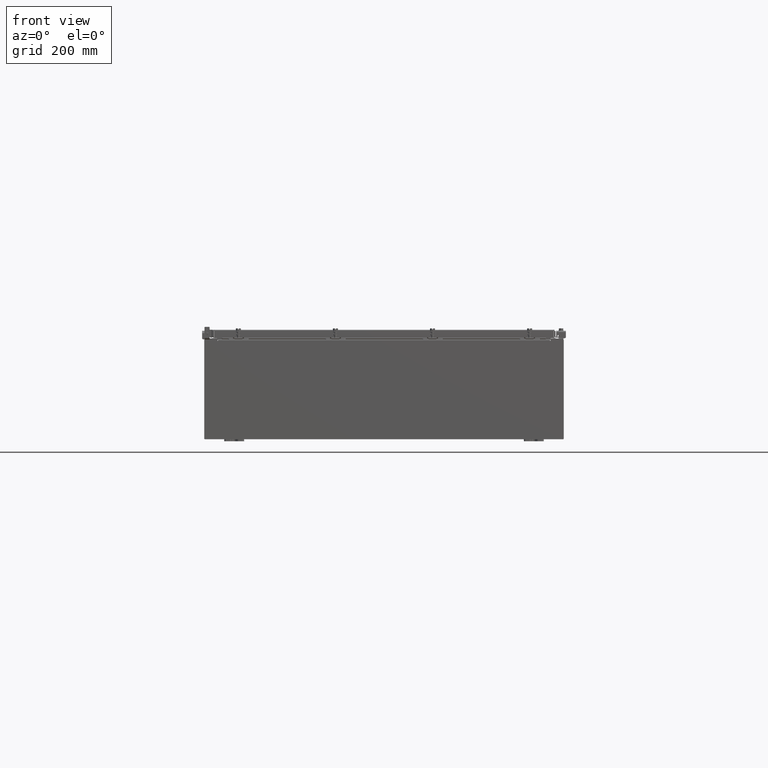
[diagram: clean part render]
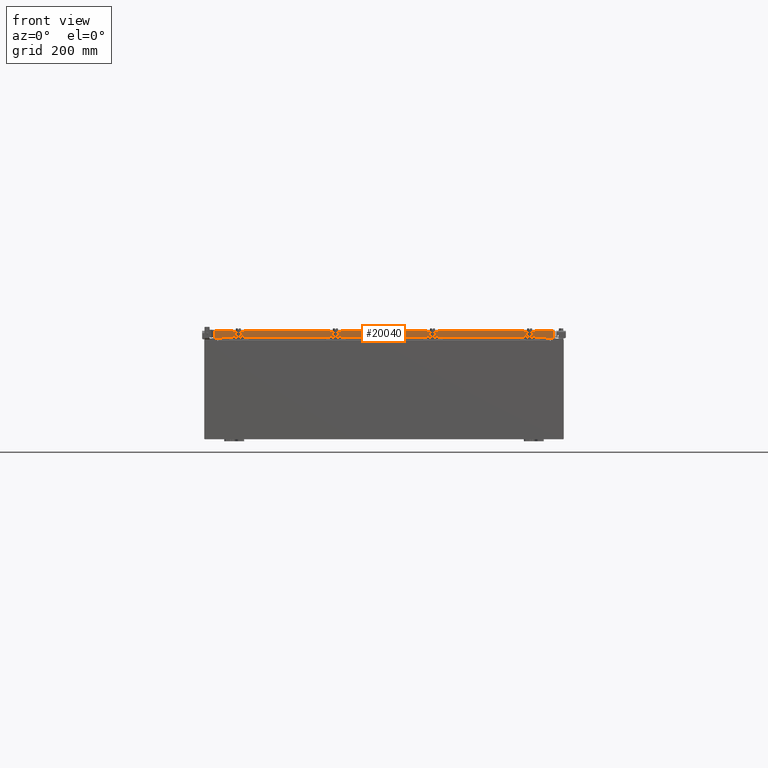
[diagram: same view with one face highlighted and labeled with its STEP entity id]
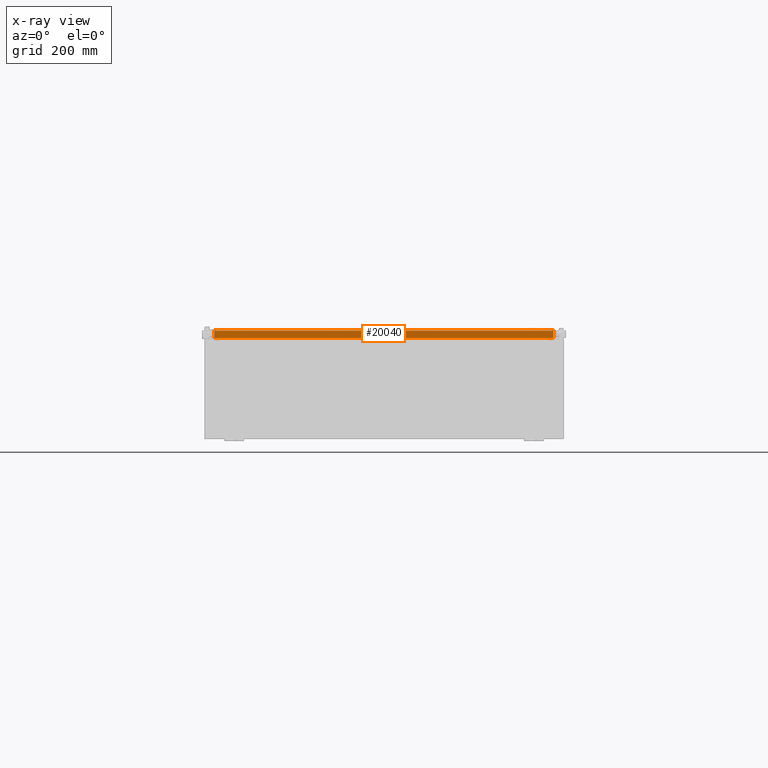
[diagram: x-ray of the same camera — body ghosted, the highlighted face saturated]
A machine part, front view. The second image highlights one B-rep face of the part: STEP entity #20040.
The next image is the same camera in x-ray: the body ghosted, the highlighted face saturated — about 0% of this face is hidden behind the body in this view.
In plain terms, the highlighted planar face has unit normal (-0, 1, -0).
Its self-contained STEP definition (entity closure, byte-faithful):
#139 = VECTOR ( 'NONE', #17964, 39.37007874015748100 ) ;
#969 = VECTOR ( 'NONE', #20179, 39.37007874015748100 ) ;
#1788 = FACE_OUTER_BOUND ( 'NONE', #9519, .T. ) ;
#2096 = VERTEX_POINT ( 'NONE', #23446 ) ;
#2571 = DIRECTION ( 'NONE',  ( -1.000000000000000000, -0.0000000000000000000, 1.239713195391617100E-016 ) ) ;
#3148 = CARTESIAN_POINT ( 'NONE',  ( 16.23915786437627100, -29.09400000000000800, -0.8499999999999972000 ) ) ;
#3581 = ORIENTED_EDGE ( 'NONE', *, *, #15982, .T. ) ;
#3699 = VECTOR ( 'NONE', #2571, 39.37007874015748100 ) ;
#5522 = EDGE_CURVE ( 'NONE', #26220, #18450, #7653, .T. ) ;
#7653 = LINE ( 'NONE', #8354, #18972 ) ;
#7889 = CARTESIAN_POINT ( 'NONE',  ( 2.033440117909724100E-029, -29.09400000000000500, 1.642858579540497200E-013 ) ) ;
#8354 = CARTESIAN_POINT ( 'NONE',  ( 17.07800000000000700, -29.09400000000000800, -0.8499999999999996400 ) ) ;
#8428 = CARTESIAN_POINT ( 'NONE',  ( -16.98915786437626400, -29.09400000000000500, 1.642858579540497200E-013 ) ) ;
#9483 = CARTESIAN_POINT ( 'NONE',  ( 17.07800000000000300, -29.09400000000000500, -0.08769999999999547600 ) ) ;
#9519 = EDGE_LOOP ( 'NONE', ( #24802, #3581, #19786, #26585, #11369, #22825 ) ) ;
#10574 = DIRECTION ( 'NONE',  ( 0.0000000000000000000, -5.637761885544721800E-015, -1.000000000000000000 ) ) ;
#10736 = CARTESIAN_POINT ( 'NONE',  ( 16.98915786437627100, -29.09400000000000500, -0.07469999999999958600 ) ) ;
#11369 = ORIENTED_EDGE ( 'NONE', *, *, #5522, .F. ) ;
#12183 = DIRECTION ( 'NONE',  ( -6.989207801985715000E-031, 1.000000000000000000, -5.637761885544721100E-015 ) ) ;
#12883 = DIRECTION ( 'NONE',  ( -0.0000000000000000000, -5.637761885544721800E-015, -1.000000000000000000 ) ) ;
#13547 = AXIS2_PLACEMENT_3D ( 'NONE', #7889, #12183, #27091 ) ;
#13550 = VERTEX_POINT ( 'NONE', #13619 ) ;
#13619 = CARTESIAN_POINT ( 'NONE',  ( 16.98915786437627100, -29.09400000000000500, -0.08769999999999549000 ) ) ;
#14738 = EDGE_CURVE ( 'NONE', #2096, #16153, #19339, .T. ) ;
#15297 = VECTOR ( 'NONE', #10574, 39.37007874015748100 ) ;
#15321 = CARTESIAN_POINT ( 'NONE',  ( 17.07800000000000700, -29.09400000000000800, -0.8499999999999996400 ) ) ;
#15970 = LINE ( 'NONE', #8428, #15297 ) ;
#15982 = EDGE_CURVE ( 'NONE', #17040, #16153, #15970, .T. ) ;
#16153 = VERTEX_POINT ( 'NONE', #25845 ) ;
#16379 = EDGE_CURVE ( 'NONE', #18450, #2096, #17945, .T. ) ;
#16384 = CARTESIAN_POINT ( 'NONE',  ( 16.98915786437627100, -29.09400000000000800, -0.8499999999999996400 ) ) ;
#16816 = EDGE_CURVE ( 'NONE', #13550, #26220, #21228, .T. ) ;
#17040 = VERTEX_POINT ( 'NONE', #26190 ) ;
#17945 = LINE ( 'NONE', #3148, #969 ) ;
#17964 = DIRECTION ( 'NONE',  ( 1.000000000000000000, 6.989207801985715000E-031, -3.922586267643549100E-045 ) ) ;
#18450 = VERTEX_POINT ( 'NONE', #27270 ) ;
#18972 = VECTOR ( 'NONE', #21113, 39.37007874015748100 ) ;
#19339 = LINE ( 'NONE', #15321, #3699 ) ;
#19786 = ORIENTED_EDGE ( 'NONE', *, *, #14738, .F. ) ;
#20040 = ADVANCED_FACE ( 'NONE', ( #1788 ), #24927, .F. ) ;
#20179 = DIRECTION ( 'NONE',  ( -1.000000000000000000, 0.0000000000000000000, 0.0000000000000000000 ) ) ;
#20569 = VECTOR ( 'NONE', #12883, 39.37007874015748100 ) ;
#21113 = DIRECTION ( 'NONE',  ( -1.000000000000000000, -0.0000000000000000000, 1.239713195391617100E-016 ) ) ;
#21228 = LINE ( 'NONE', #10736, #20569 ) ;
#22763 = LINE ( 'NONE', #9483, #139 ) ;
#22825 = ORIENTED_EDGE ( 'NONE', *, *, #16816, .F. ) ;
#23446 = CARTESIAN_POINT ( 'NONE',  ( -16.23915786437626700, -29.09400000000000800, -0.8499999999999972000 ) ) ;
#24580 = EDGE_CURVE ( 'NONE', #17040, #13550, #22763, .T. ) ;
#24802 = ORIENTED_EDGE ( 'NONE', *, *, #24580, .F. ) ;
#24927 = PLANE ( 'NONE',  #13547 ) ;
#25845 = CARTESIAN_POINT ( 'NONE',  ( -16.98915786437626400, -29.09400000000000800, -0.8499999999999954300 ) ) ;
#26190 = CARTESIAN_POINT ( 'NONE',  ( -16.98915786437626400, -29.09400000000000500, -0.08769999999999547600 ) ) ;
#26220 = VERTEX_POINT ( 'NONE', #16384 ) ;
#26585 = ORIENTED_EDGE ( 'NONE', *, *, #16379, .F. ) ;
#27091 = DIRECTION ( 'NONE',  ( 0.0000000000000000000, 5.637761885544721100E-015, 1.000000000000000000 ) ) ;
#27270 = CARTESIAN_POINT ( 'NONE',  ( 16.23915786437626700, -29.09400000000000800, -0.8499999999999972000 ) ) ;